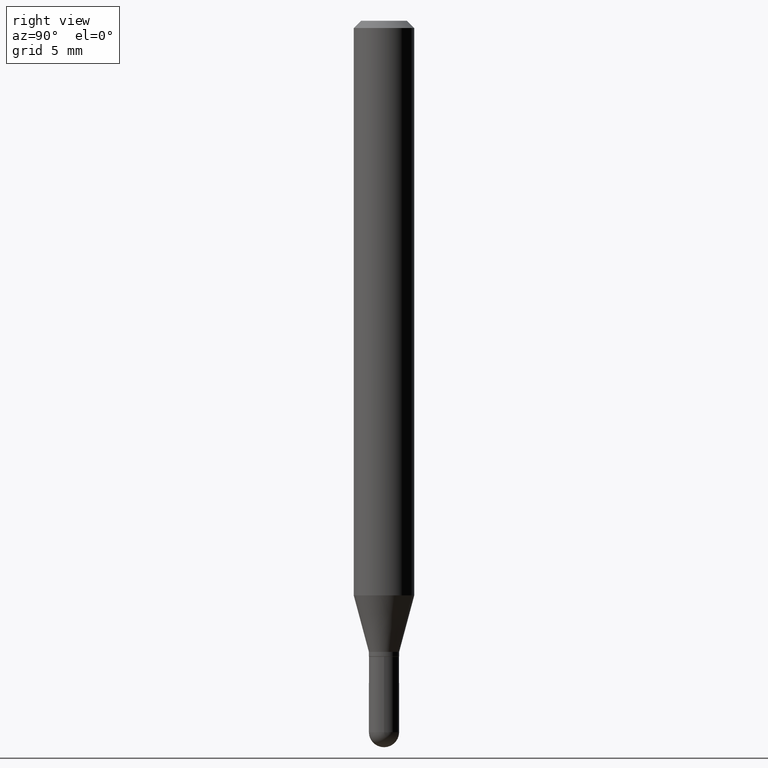
[diagram: clean part render]
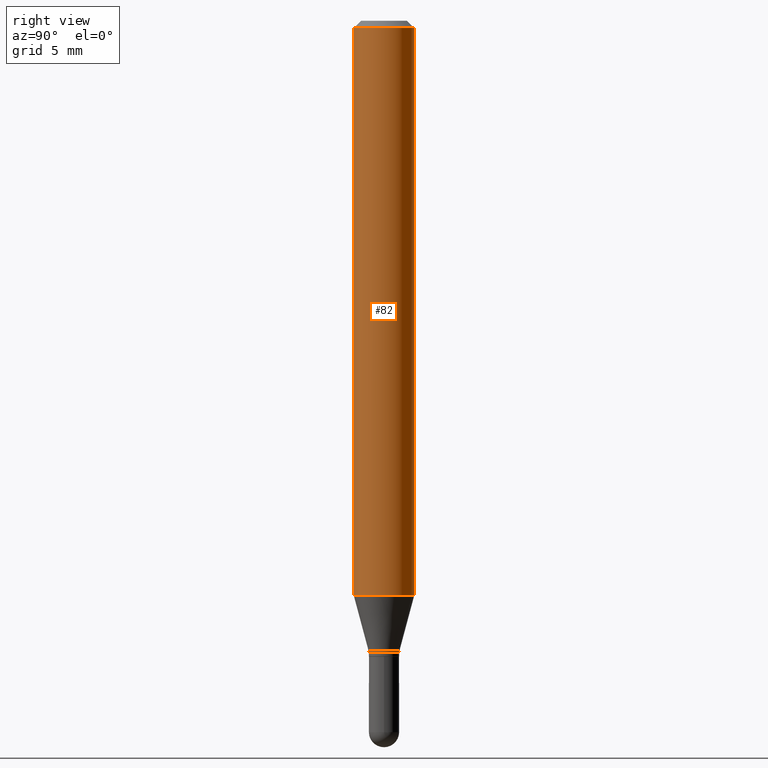
[diagram: same view with one face highlighted and labeled with its STEP entity id]
A machine part, right view. The second image highlights one B-rep face of the part: STEP entity #82.
In plain terms, the highlighted cylindrical surface (edge-blend (fillet) strip) has radius 1.5875 mm, axis along (-0, 0, 1).
Its self-contained STEP definition (entity closure, byte-faithful):
#4 = CIRCLE ( 'NONE', #437, 0.06250000000000000000 ) ;
#10 = VERTEX_POINT ( 'NONE', #313 ) ;
#18 = DIRECTION ( 'NONE',  ( -2.445427662834399299E-29, 3.491540258463135549E-15, 1.000000000000000000 ) ) ;
#31 = EDGE_CURVE ( 'NONE', #53, #464, #47, .T. ) ;
#37 = CARTESIAN_POINT ( 'NONE',  ( 2.901190360800337940E-29, -4.142270530488200831E-15, -1.186373412263473703 ) ) ;
#47 = CIRCLE ( 'NONE', #508, 0.06250000000000001388 ) ;
#53 = VERTEX_POINT ( 'NONE', #382 ) ;
#77 = EDGE_CURVE ( 'NONE', #324, #53, #115, .T. ) ;
#82 = ADVANCED_FACE ( 'NONE', ( #315 ), #155, .T. ) ;
#83 = ORIENTED_EDGE ( 'NONE', *, *, #31, .F. ) ;
#84 = AXIS2_PLACEMENT_3D ( 'NONE', #474, #306, #123 ) ;
#93 = CARTESIAN_POINT ( 'NONE',  ( 4.440892098500626162E-16, 0.06250000000000001388, -2.182212661539459965E-16 ) ) ;
#101 = VECTOR ( 'NONE', #18, 39.37007874015748143 ) ;
#107 = CARTESIAN_POINT ( 'NONE',  ( 3.668141494251704677E-31, -5.237310387694854119E-17, -0.01500000000000043313 ) ) ;
#115 = LINE ( 'NONE', #467, #393 ) ;
#123 = DIRECTION ( 'NONE',  ( -6.982962677686265133E-15, -1.000000000000000000, 3.491540258463135155E-15 ) ) ;
#126 = EDGE_CURVE ( 'NONE', #10, #464, #146, .T. ) ;
#146 = LINE ( 'NONE', #93, #101 ) ;
#147 = EDGE_LOOP ( 'NONE', ( #358, #296, #83, #402 ) ) ;
#155 = CYLINDRICAL_SURFACE ( 'NONE', #84, 0.06250000000000001388 ) ;
#161 = DIRECTION ( 'NONE',  ( -6.982962677686265922E-15, -1.000000000000000000, 4.370956789862821150E-15 ) ) ;
#165 = DIRECTION ( 'NONE',  ( -2.445427662834399299E-29, 3.491540258463135549E-15, 1.000000000000000000 ) ) ;
#238 = DIRECTION ( 'NONE',  ( -6.982962677686265922E-15, -1.000000000000000000, 3.483106191921934765E-15 ) ) ;
#251 = EDGE_CURVE ( 'NONE', #324, #10, #4, .T. ) ;
#265 = CARTESIAN_POINT ( 'NONE',  ( 4.440892098500919026E-16, 0.06249999999999997224, -0.01500000000000065170 ) ) ;
#296 = ORIENTED_EDGE ( 'NONE', *, *, #126, .T. ) ;
#306 = DIRECTION ( 'NONE',  ( -2.445427662834399299E-29, 3.491540258463135549E-15, 1.000000000000000000 ) ) ;
#313 = CARTESIAN_POINT ( 'NONE',  ( 4.440892098500914096E-16, 0.06249999999999582279, -1.186373412263473925 ) ) ;
#315 = FACE_OUTER_BOUND ( 'NONE', #147, .T. ) ;
#324 = VERTEX_POINT ( 'NONE', #374 ) ;
#358 = ORIENTED_EDGE ( 'NONE', *, *, #251, .T. ) ;
#374 = CARTESIAN_POINT ( 'NONE',  ( -4.364351673553628267E-16, -0.06250000000000417721, -1.186373412263473259 ) ) ;
#382 = CARTESIAN_POINT ( 'NONE',  ( -4.364351673553913736E-16, -0.06250000000000006939, -0.01500000000000021629 ) ) ;
#393 = VECTOR ( 'NONE', #165, 39.37007874015748143 ) ;
#402 = ORIENTED_EDGE ( 'NONE', *, *, #77, .F. ) ;
#435 = DIRECTION ( 'NONE',  ( -2.445427662834399299E-29, 3.491540258463135549E-15, 1.000000000000000000 ) ) ;
#437 = AXIS2_PLACEMENT_3D ( 'NONE', #37, #435, #161 ) ;
#463 = DIRECTION ( 'NONE',  ( -2.445427662834399299E-29, 3.491540258463135549E-15, 1.000000000000000000 ) ) ;
#464 = VERTEX_POINT ( 'NONE', #265 ) ;
#467 = CARTESIAN_POINT ( 'NONE',  ( -4.364351673553916694E-16, -0.06250000000000001388, 2.182212661539459965E-16 ) ) ;
#474 = CARTESIAN_POINT ( 'NONE',  ( 0.000000000000000000, 0.000000000000000000, 0.000000000000000000 ) ) ;
#508 = AXIS2_PLACEMENT_3D ( 'NONE', #107, #463, #238 ) ;